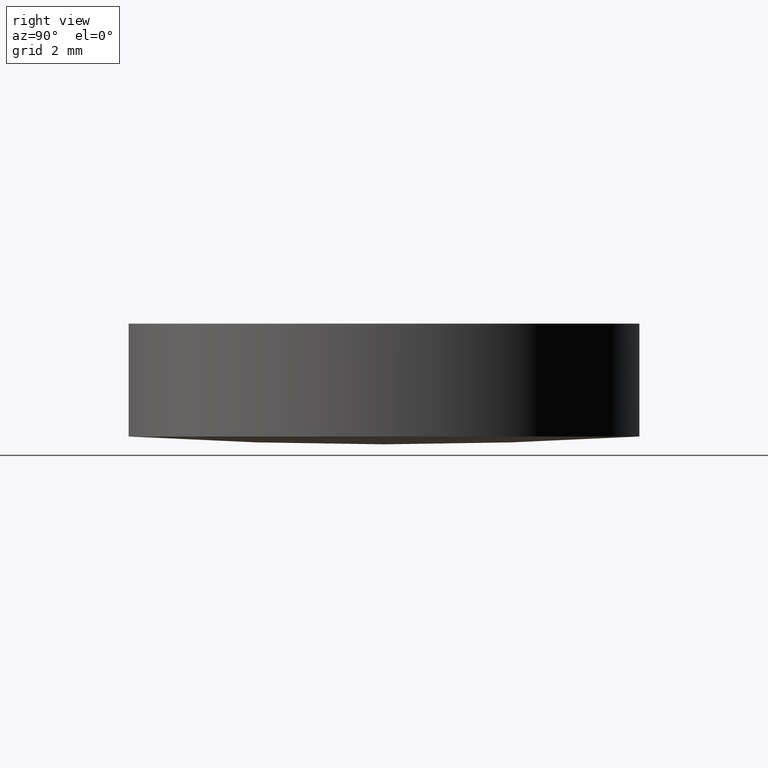
[diagram: clean part render]
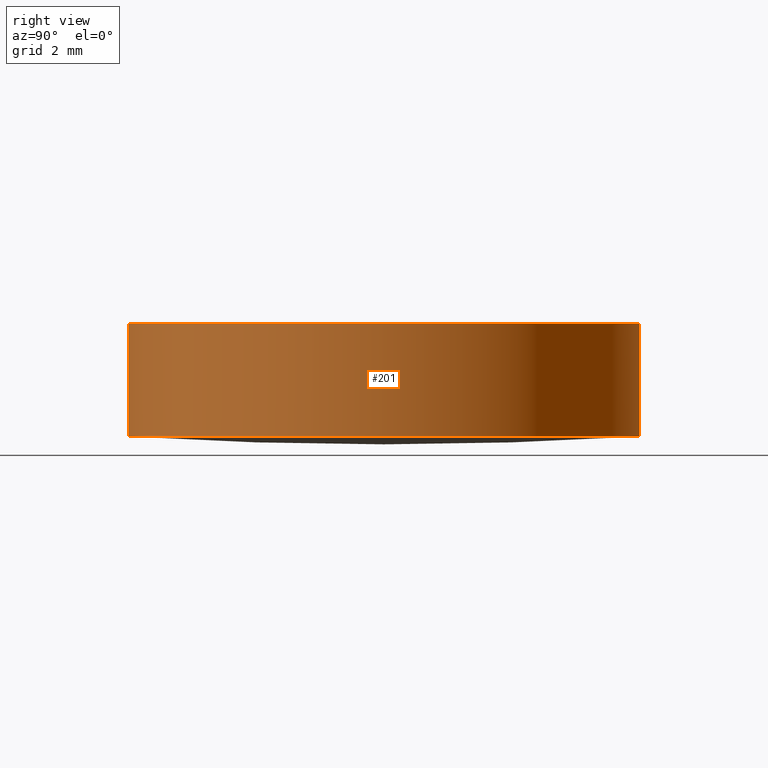
[diagram: same view with one face highlighted and labeled with its STEP entity id]
A machine part, right view. The second image highlights one B-rep face of the part: STEP entity #201.
In plain terms, the highlighted cylindrical surface (partial cylindrical patch) has radius 6.35 mm, axis along (-0, -0, 1).
Its self-contained STEP definition (entity closure, byte-faithful):
#2 = EDGE_CURVE ( 'NONE', #148, #101, #147, .T. ) ;
#3 = ORIENTED_EDGE ( 'NONE', *, *, #31, .F. ) ;
#4 = DIRECTION ( 'NONE',  ( -2.283316566636270100E-032, -1.187235674646670000E-016, 1.000000000000000000 ) ) ;
#5 = CARTESIAN_POINT ( 'NONE',  ( 2.498001805406600200E-016, 1.221245327087670000E-015, 0.1946015900619790000 ) ) ;
#7 = EDGE_LOOP ( 'NONE', ( #64, #70, #15, #3 ) ) ;
#8 = CARTESIAN_POINT ( 'NONE',  ( 2.498001805406599800E-016, 8.881784197001237500E-016, 3.000000000000000000 ) ) ;
#11 = AXIS2_PLACEMENT_3D ( 'NONE', #5, #4, #141 ) ;
#15 = ORIENTED_EDGE ( 'NONE', *, *, #214, .T. ) ;
#18 = VERTEX_POINT ( 'NONE', #103 ) ;
#21 = CARTESIAN_POINT ( 'NONE',  ( 2.498001805406600200E-016, -6.349999999999998800, 0.1946015900619782200 ) ) ;
#23 = DIRECTION ( 'NONE',  ( 0.0000000000000000000, -1.000000000000000000, -1.195183497228115300E-016 ) ) ;
#31 = EDGE_CURVE ( 'NONE', #101, #128, #193, .T. ) ;
#38 = CARTESIAN_POINT ( 'NONE',  ( 2.498001805406600200E-016, 1.221245327087670000E-015, 0.1946015900619790000 ) ) ;
#52 = DIRECTION ( 'NONE',  ( -2.283316566636270100E-032, -1.187235674646670000E-016, 1.000000000000000000 ) ) ;
#55 = DIRECTION ( 'NONE',  ( 2.283316566636270100E-032, 1.187235674646670000E-016, -1.000000000000000000 ) ) ;
#57 = DIRECTION ( 'NONE',  ( 0.0000000000000000000, -1.000000000000000000, -1.365923996832131600E-016 ) ) ;
#63 = FACE_OUTER_BOUND ( 'NONE', #7, .T. ) ;
#64 = ORIENTED_EDGE ( 'NONE', *, *, #2, .F. ) ;
#69 = CARTESIAN_POINT ( 'NONE',  ( 2.498001805406599800E-016, -6.349999999999998800, 2.999999999999999100 ) ) ;
#70 = ORIENTED_EDGE ( 'NONE', *, *, #195, .T. ) ;
#76 = DIRECTION ( 'NONE',  ( -2.283316566636270100E-032, -1.187235674646670000E-016, 1.000000000000000000 ) ) ;
#101 = VERTEX_POINT ( 'NONE', #134 ) ;
#103 = CARTESIAN_POINT ( 'NONE',  ( 1.027450897999229200E-015, 6.350000000000000500, 3.000000000000000900 ) ) ;
#112 = VECTOR ( 'NONE', #52, 1000.000000000000000 ) ;
#117 = CYLINDRICAL_SURFACE ( 'NONE', #11, 6.349999999999999600 ) ;
#119 = VECTOR ( 'NONE', #76, 1000.000000000000000 ) ;
#122 = AXIS2_PLACEMENT_3D ( 'NONE', #8, #55, #57 ) ;
#128 = VERTEX_POINT ( 'NONE', #69 ) ;
#131 = AXIS2_PLACEMENT_3D ( 'NONE', #38, #184, #23 ) ;
#134 = CARTESIAN_POINT ( 'NONE',  ( 2.498001805406600200E-016, -6.349999999999998800, 0.1946015900619782200 ) ) ;
#141 = DIRECTION ( 'NONE',  ( 0.0000000000000000000, -1.000000000000000000, -1.195183497228115300E-016 ) ) ;
#147 = CIRCLE ( 'NONE', #131, 6.349999999999999600 ) ;
#148 = VERTEX_POINT ( 'NONE', #203 ) ;
#154 = CARTESIAN_POINT ( 'NONE',  ( 1.027450897999229200E-015, 6.350000000000000500, 0.1946015900619797500 ) ) ;
#184 = DIRECTION ( 'NONE',  ( 2.283316566636270100E-032, 1.187235674646670000E-016, -1.000000000000000000 ) ) ;
#185 = CIRCLE ( 'NONE', #122, 6.349999999999999600 ) ;
#193 = LINE ( 'NONE', #21, #112 ) ;
#195 = EDGE_CURVE ( 'NONE', #148, #18, #207, .T. ) ;
#201 = ADVANCED_FACE ( 'NONE', ( #63 ), #117, .T. ) ;
#203 = CARTESIAN_POINT ( 'NONE',  ( 1.027450897999229200E-015, 6.350000000000000500, 0.1946015900619797500 ) ) ;
#207 = LINE ( 'NONE', #154, #119 ) ;
#214 = EDGE_CURVE ( 'NONE', #18, #128, #185, .T. ) ;